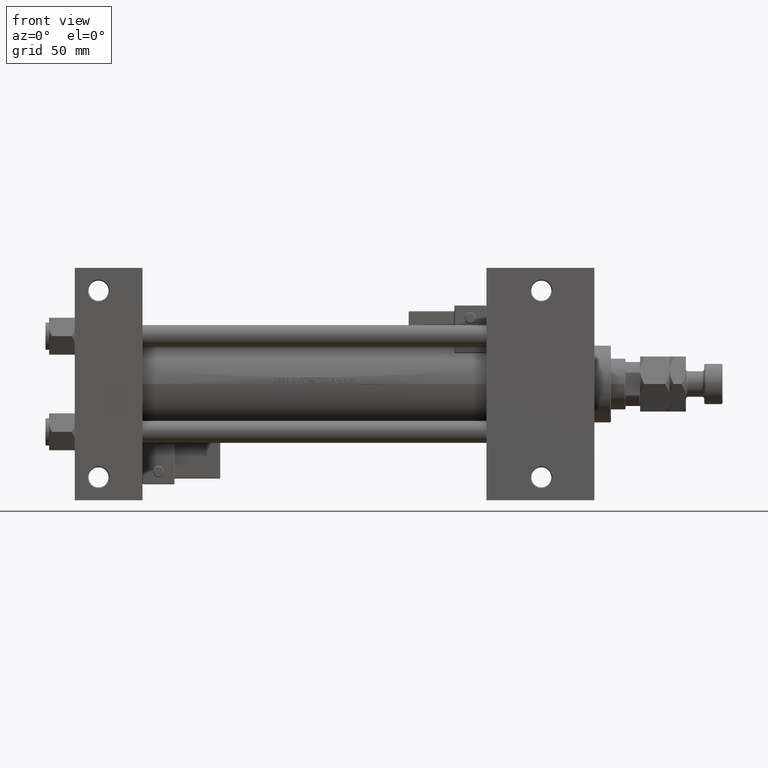
[diagram: clean part render]
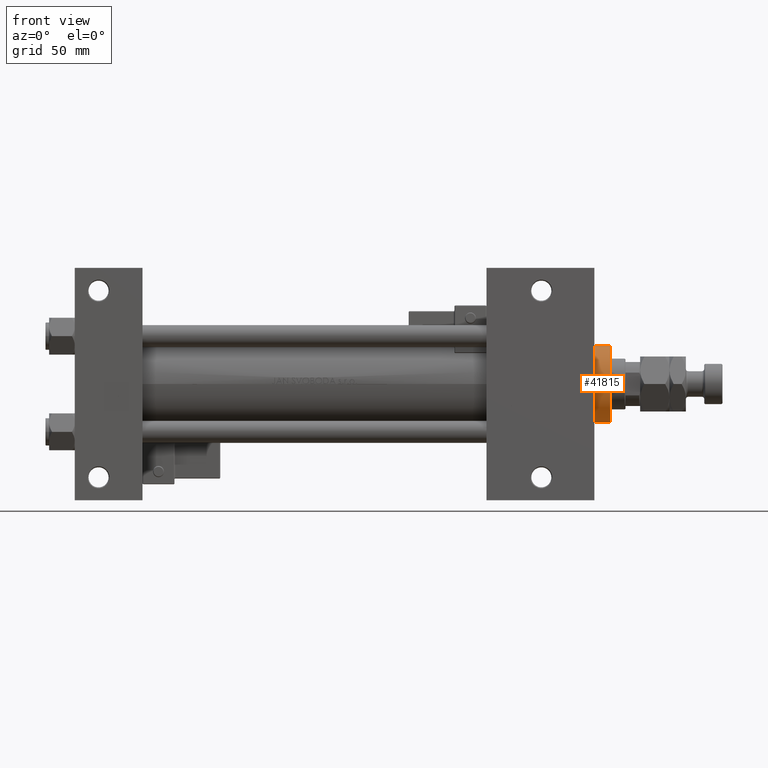
[diagram: same view with one face highlighted and labeled with its STEP entity id]
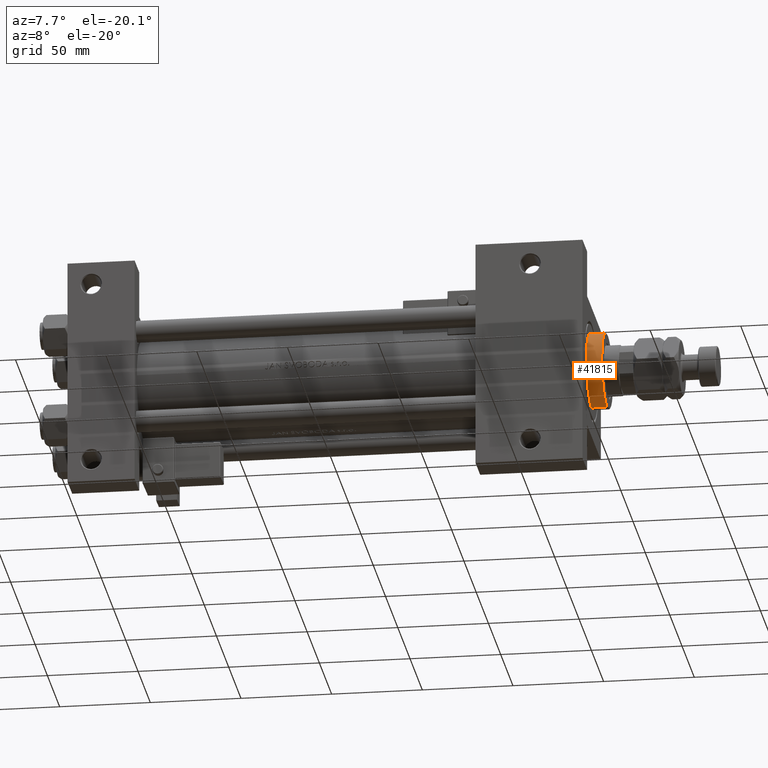
[diagram: same view with one face highlighted and labeled with its STEP entity id]
A machine part, front view. The second image highlights one B-rep face of the part: STEP entity #41815.
A second angle (auxiliary view) of the same face is appended — the face is thin or edge-on in the first view.
In plain terms, the highlighted cylindrical surface (partial cylindrical patch) has radius 21 mm, axis along (-1, -0, 0).
Its self-contained STEP definition (entity closure, byte-faithful):
#1157 = EDGE_CURVE ( 'NONE', #35683, #15304, #8775, .T. ) ;
#4862 = CIRCLE ( 'NONE', #29499, 21.00000000000000000 ) ;
#5408 = ORIENTED_EDGE ( 'NONE', *, *, #43158, .F. ) ;
#8162 = AXIS2_PLACEMENT_3D ( 'NONE', #52184, #28341, #36376 ) ;
#8650 = EDGE_LOOP ( 'NONE', ( #5408, #48608, #44132, #41676 ) ) ;
#8775 = LINE ( 'NONE', #26643, #37476 ) ;
#11747 = DIRECTION ( 'NONE',  ( -0.000000000000000000, -0.000000000000000000, -1.000000000000000000 ) ) ;
#12689 = DIRECTION ( 'NONE',  ( -0.000000000000000000, -0.000000000000000000, -1.000000000000000000 ) ) ;
#15304 = VERTEX_POINT ( 'NONE', #15920 ) ;
#15920 = CARTESIAN_POINT ( 'NONE',  ( -21.00000000000000000, 0.000000000000000000, 28.69999999999999929 ) ) ;
#20621 = CARTESIAN_POINT ( 'NONE',  ( 21.00000000000000000, 2.571758278209441661E-15, 28.69999999999999929 ) ) ;
#21485 = CARTESIAN_POINT ( 'NONE',  ( 0.000000000000000000, 0.000000000000000000, 37.69999999999999574 ) ) ;
#22616 = EDGE_CURVE ( 'NONE', #44736, #35683, #50023, .T. ) ;
#23759 = LINE ( 'NONE', #48408, #39446 ) ;
#24003 = AXIS2_PLACEMENT_3D ( 'NONE', #21485, #12689, #25236 ) ;
#25195 = DIRECTION ( 'NONE',  ( 0.000000000000000000, 0.000000000000000000, 1.000000000000000000 ) ) ;
#25236 = DIRECTION ( 'NONE',  ( -1.000000000000000000, 0.000000000000000000, 0.000000000000000000 ) ) ;
#25323 = EDGE_CURVE ( 'NONE', #15304, #38451, #4862, .T. ) ;
#26643 = CARTESIAN_POINT ( 'NONE',  ( -21.00000000000000000, 0.000000000000000000, 37.69999999999999574 ) ) ;
#28341 = DIRECTION ( 'NONE',  ( 0.000000000000000000, 0.000000000000000000, -1.000000000000000000 ) ) ;
#29499 = AXIS2_PLACEMENT_3D ( 'NONE', #32714, #25195, #49314 ) ;
#29770 = FACE_OUTER_BOUND ( 'NONE', #8650, .T. ) ;
#32714 = CARTESIAN_POINT ( 'NONE',  ( 0.000000000000000000, 0.000000000000000000, 28.69999999999999929 ) ) ;
#35683 = VERTEX_POINT ( 'NONE', #47198 ) ;
#36376 = DIRECTION ( 'NONE',  ( 1.000000000000000000, 0.000000000000000000, 0.000000000000000000 ) ) ;
#37476 = VECTOR ( 'NONE', #42973, 1000.000000000000000 ) ;
#38451 = VERTEX_POINT ( 'NONE', #20621 ) ;
#39446 = VECTOR ( 'NONE', #11747, 1000.000000000000000 ) ;
#41676 = ORIENTED_EDGE ( 'NONE', *, *, #25323, .T. ) ;
#41815 = ADVANCED_FACE ( 'NONE', ( #29770 ), #49872, .T. ) ;
#42973 = DIRECTION ( 'NONE',  ( -0.000000000000000000, -0.000000000000000000, -1.000000000000000000 ) ) ;
#43158 = EDGE_CURVE ( 'NONE', #44736, #38451, #23759, .T. ) ;
#44132 = ORIENTED_EDGE ( 'NONE', *, *, #1157, .T. ) ;
#44736 = VERTEX_POINT ( 'NONE', #50648 ) ;
#47198 = CARTESIAN_POINT ( 'NONE',  ( -21.00000000000000000, 0.000000000000000000, 37.19999999999999574 ) ) ;
#48408 = CARTESIAN_POINT ( 'NONE',  ( 21.00000000000000000, 2.571758278209441661E-15, 37.69999999999999574 ) ) ;
#48608 = ORIENTED_EDGE ( 'NONE', *, *, #22616, .T. ) ;
#49314 = DIRECTION ( 'NONE',  ( 1.000000000000000000, 0.000000000000000000, 0.000000000000000000 ) ) ;
#49872 = CYLINDRICAL_SURFACE ( 'NONE', #24003, 21.00000000000000000 ) ;
#50023 = CIRCLE ( 'NONE', #8162, 21.00000000000000000 ) ;
#50648 = CARTESIAN_POINT ( 'NONE',  ( 21.00000000000000000, 2.571758278209441661E-15, 37.19999999999999574 ) ) ;
#52184 = CARTESIAN_POINT ( 'NONE',  ( 0.000000000000000000, 0.000000000000000000, 37.19999999999999574 ) ) ;